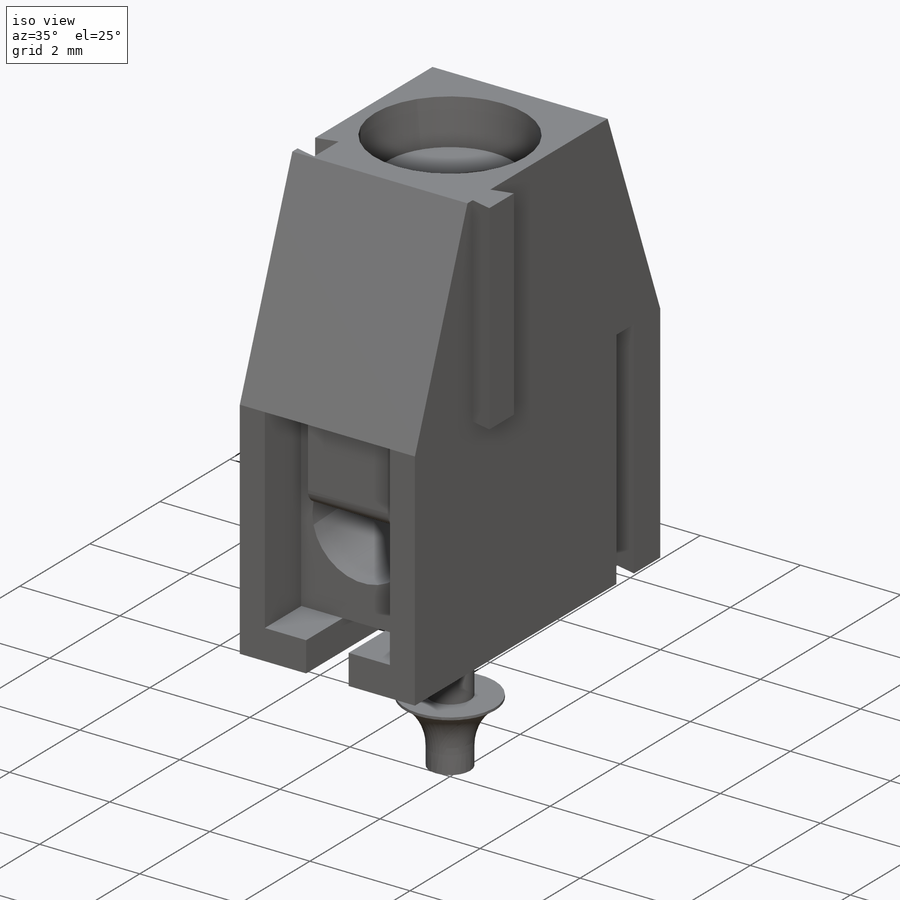
[diagram: iso view]
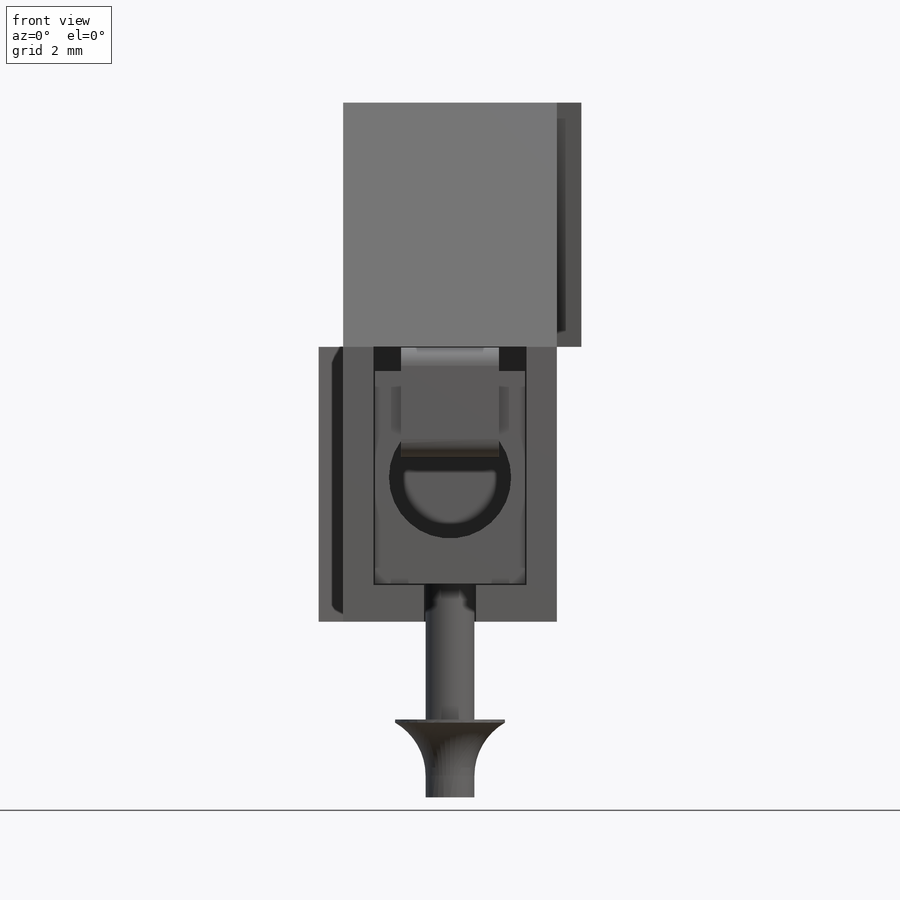
[diagram: front view]
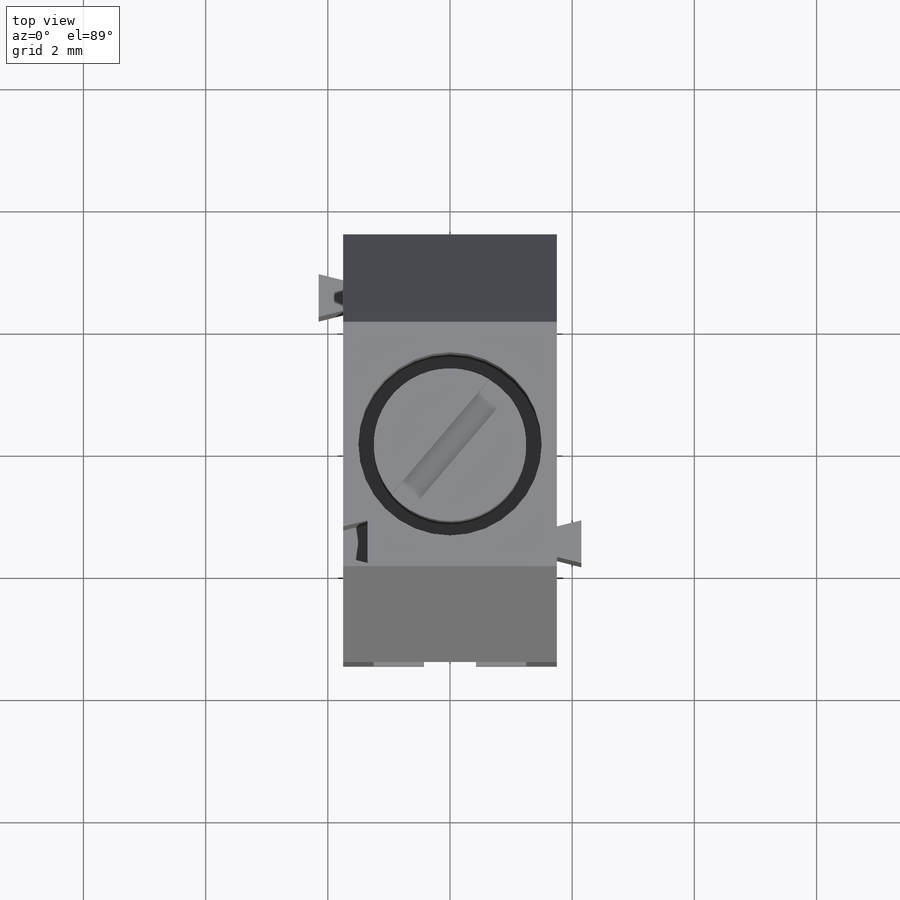
[diagram: top view]
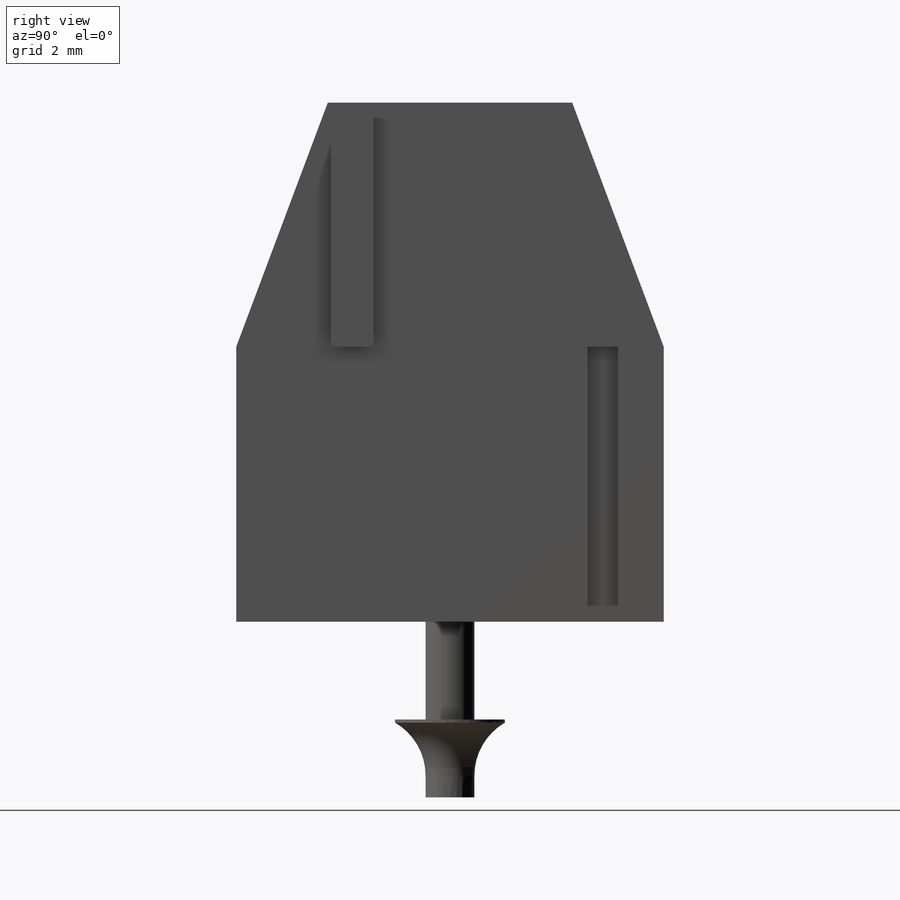
[diagram: right view]
SOLIDWORKS PART (.sldprt)
format: sldprt  version: not decoded by parser v0  size: 369,664 bytes
history: native  units: mm
features: sketch x13, extrude x7, cut_extrude x5, plane x4, material x1, fillet x1 (+8 scaffold rows collapsed)
feature tree (39):
  scaffold x8  (default folders/planes/origin — collapsed)
  material  "Matériau <non spécifié>"
  plane  "Plan de face"
  plane  "Plan de dessus"
  plane  "Plan de droite"
  sketch  "Esquisse1"  dims[D1=8.5mm D2=4.5mm D3=4.0mm D4=7.0mm]
  extrude  "Boss.-Extru.1"  Depth=3.5mm
  sketch  "Esquisse2"  dims[c1.D1=0.6mm c1.D2=0.5mm c1.D3=0.85mm c1.D4=~0.011828mm c1.D5=1.2mm c2.D4=1.2mm]
  cut_extrude  "Enlèv. mat.-Extru.1"  Depth=6.5mm
  sketch  "Esquisse3"  dims[D1=3.0mm]
  cut_extrude  "Enlèv. mat.-Extru.2"  [1 undecoded]
  sketch  "Esquisse12"  dims[D1=0.7mm D2=0.4mm D3=0.5mm D4=0.4mm]
  extrude  "Boss.-Extru.5"  [1 undecoded]
  sketch  "Esquisse13"  dims[c1.D1=~0.397739mm c2.D1=~0.143876deg c3.D1=0.4mm c3.D2=0.4mm]
  cut_extrude  "Enlèv. mat.-Extru.4"  [1 undecoded]
  sketch  "Esquisse14"  dims[D1=0.7mm D2=0.4mm D3=0.5mm D4=1.0mm]
  extrude  "Boss.-Extru.6"  [1 undecoded]
  sketch  "Esquisse15"  dims[D1=0.4mm]
  cut_extrude  "Enlèv. mat.-Extru.5"  [1 undecoded]
  sketch  "Esquisse8"  dims[c1.D3=~1.045277mm c1.D2=0.4mm c2.D3=~4.634989mm c2.D1=0.025mm]
  extrude  "Boss.-Extru.2"  Depth=5mm
  sketch  "Esquisse9"  dims[D1=~0.365232mm]
  extrude  "Boss.-Extru.3"  Depth=3.5mm
  sketch  "Esquisse10"  dims[D1=2.5mm]
  extrude  "Boss.-Extru.4"  Depth=3.2mm
  sketch  "Esquisse11"  dims[D1=~1.88275mm D2=~0.198777mm]
  cut_extrude  "Enlèv. mat.-Extru.3"  Depth=0.4mm
  sketch  "Esquisse16"  dims[c1.D1=~7.831543mm c2.D1=1.6mm c2.D5=0.2mm c2.D6=1.0mm c2.D7=5.0mm]
  plane  "Plan1"  Offset=1.6mm
  sketch  "Esquisse18"  dims[D1=~1.288065mm]
  extrude  "Boss.-Extru.8"  Depth=0.05mm
  fillet  "Congé1"  Radius=1mm
decode coverage: 21 of 26 modeling features carry decoded parameters
note: ~ marks probable driven/reference dimensions
note: 5 parameter values undecoded
summary: no parameter record found for 5 features
note: suppression state not decoded; provenance and decode notes live in map.json
